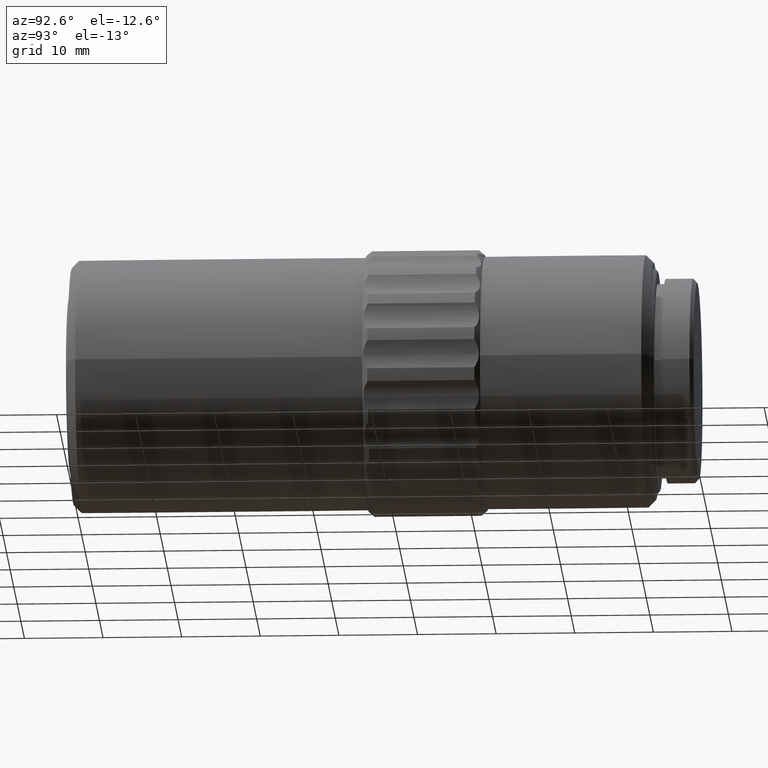
[diagram: clean part render]
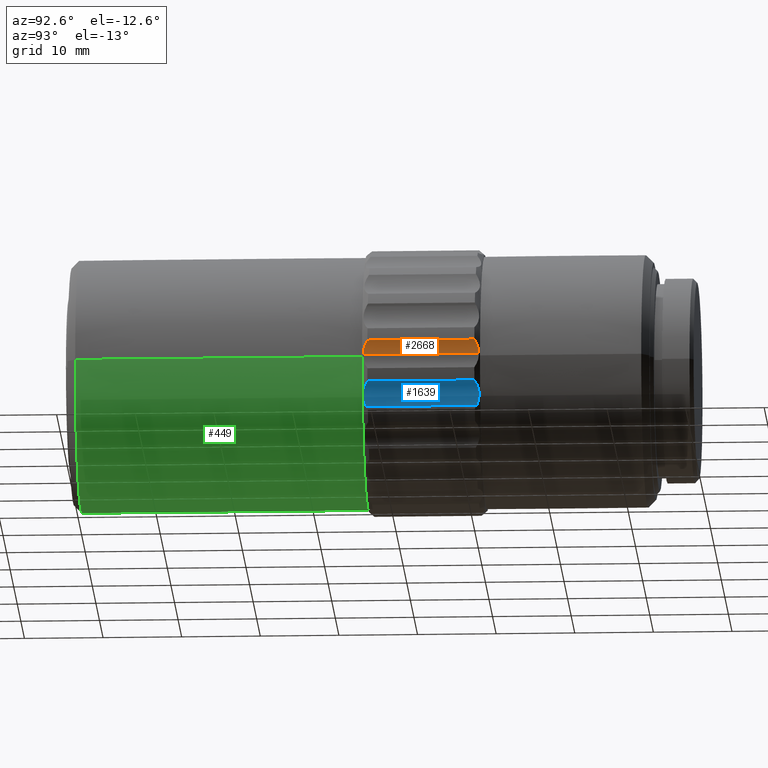
[diagram: same view with three faces highlighted in distinct colors, each labeled with its STEP entity id]
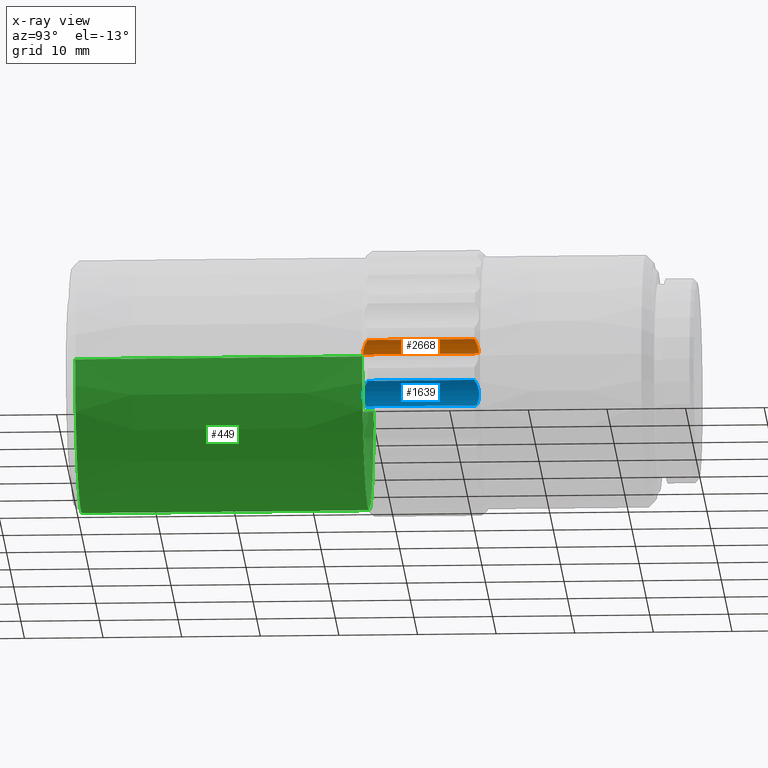
[diagram: x-ray of the same camera — body ghosted, the three highlighted faces saturated]
A machine part, auxiliary view with three faces highlighted in distinct colors.
The next image is the same camera in x-ray (body ghosted, the three faces saturated) — at least one of them is partly hidden behind the body in this view.
Their STEP definitions:

[orange] entity #2668 — the highlighted cylindrical surface (partial cylindrical patch) has radius 4.7702 mm, axis along (0, 1, 0).
#42 = ORIENTED_EDGE ( 'NONE', *, *, #192, .T. ) ;
#87 = CARTESIAN_POINT ( 'NONE',  ( 1361.088827873934861, 1001.494764065162144, 0.1917487012163752169 ) ) ;
#110 = DIRECTION ( 'NONE',  ( 9.536353041006706904E-06, 0.9999999999545291507, 3.909226458168046925E-15 ) ) ;
#192 = EDGE_CURVE ( 'NONE', #1266, #2079, #2236, .T. ) ;
#255 = CARTESIAN_POINT ( 'NONE',  ( 1361.122063543767808, 1001.432943752388610, 0.8341316487893765119 ) ) ;
#274 = CARTESIAN_POINT ( 'NONE',  ( 1361.437935237061538, 996.7971688132432746, 1.983154744599805896 ) ) ;
#294 = B_SPLINE_CURVE_WITH_KNOTS ( 'NONE', 3,
 ( #2309, #1195, #2732, #362, #2551, #1232 ),
 .UNSPECIFIED., .F., .F.,
 ( 4, 2, 4 ),
 ( 1.475248762992163295E-06, 0.0009720655540177527195, 0.001942655859272512681 ),
 .UNSPECIFIED. ) ;
#329 = CARTESIAN_POINT ( 'NONE',  ( 1361.437828095696204, 990.4829779446437215, 1.983038929509113757 ) ) ;
#362 = CARTESIAN_POINT ( 'NONE',  ( 1361.121908297512391, 986.8192080218962019, 0.8339938458747182537 ) ) ;
#511 = CARTESIAN_POINT ( 'NONE',  ( 1361.437981942076249, 999.5496446098438810, 1.983205228694574940 ) ) ;
#563 = FACE_OUTER_BOUND ( 'NONE', #1011, .T. ) ;
#637 = EDGE_CURVE ( 'NONE', #2228, #2079, #2343, .T. ) ;
#672 = CARTESIAN_POINT ( 'NONE',  ( 1361.088638397358636, 981.6258922507332727, 0.1917487012163020532 ) ) ;
#693 = ORIENTED_EDGE ( 'NONE', *, *, #637, .F. ) ;
#789 = CARTESIAN_POINT ( 'NONE',  ( 1361.438005294609866, 1000.925882508144127, 1.983230469874889712 ) ) ;
#799 = EDGE_CURVE ( 'NONE', #1326, #1266, #294, .T. ) ;
#872 = B_SPLINE_CURVE_WITH_KNOTS ( 'NONE', 3,
 ( #951, #329, #1388, #274, #1857, #511, #1829 ),
 .UNSPECIFIED., .F., .F.,
 ( 4, 3, 4 ),
 ( 6.908954039100683332E-05, 0.009540375846247206235, 0.01366908954243689460 ),
 .UNSPECIFIED. ) ;
#905 = ORIENTED_EDGE ( 'NONE', *, *, #799, .T. ) ;
#951 = CARTESIAN_POINT ( 'NONE',  ( 1361.437774525151553, 987.3258825103439449, 1.982981017399519708 ) ) ;
#1006 = CARTESIAN_POINT ( 'NONE',  ( 1361.088687333665348, 986.7574458453808575, 0.1917487012163211491 ) ) ;
#1011 = EDGE_LOOP ( 'NONE', ( #905, #42, #693, #2102 ) ) ;
#1168 = CARTESIAN_POINT ( 'NONE',  ( 1361.438005294609866, 1000.925882508144127, 1.983230469874889712 ) ) ;
#1195 = CARTESIAN_POINT ( 'NONE',  ( 1361.332168262155164, 987.1601955093375409, 1.722328331945940816 ) ) ;
#1232 = CARTESIAN_POINT ( 'NONE',  ( 1361.088687333665348, 986.7574458453808575, 0.1917487012163211491 ) ) ;
#1266 = VERTEX_POINT ( 'NONE', #1006 ) ;
#1326 = VERTEX_POINT ( 'NONE', #2169 ) ;
#1355 = CARTESIAN_POINT ( 'NONE',  ( 1361.245529310081793, 1001.230923882091588, 1.443600356246418137 ) ) ;
#1388 = CARTESIAN_POINT ( 'NONE',  ( 1361.437881666333169, 993.6400733789434980, 1.983096838575564513 ) ) ;
#1533 = VECTOR ( 'NONE', #1539, 1000.000000000000114 ) ;
#1539 = DIRECTION ( 'NONE',  ( 9.536353041006706904E-06, 0.9999999999545290397, 3.909226458168046136E-15 ) ) ;
#1577 = CARTESIAN_POINT ( 'NONE',  ( 1361.088827873934861, 1001.494764065162144, 0.1917487012163752169 ) ) ;
#1622 = CYLINDRICAL_SURFACE ( 'NONE', #2562, 4.770187923123637930 ) ;
#1829 = CARTESIAN_POINT ( 'NONE',  ( 1361.438005294609866, 1000.925882508144127, 1.983230469874889712 ) ) ;
#1857 = CARTESIAN_POINT ( 'NONE',  ( 1361.437958589560139, 998.1734067115436346, 1.983179986936237871 ) ) ;
#2079 = VERTEX_POINT ( 'NONE', #87 ) ;
#2102 = ORIENTED_EDGE ( 'NONE', *, *, #2138, .F. ) ;
#2109 = CARTESIAN_POINT ( 'NONE',  ( 1365.858826320265280, 981.6258467605372289, 0.1917487012163020532 ) ) ;
#2138 = EDGE_CURVE ( 'NONE', #1326, #2228, #872, .T. ) ;
#2169 = CARTESIAN_POINT ( 'NONE',  ( 1361.437774525151553, 987.3258825103439449, 1.982981017399519708 ) ) ;
#2228 = VERTEX_POINT ( 'NONE', #789 ) ;
#2236 = LINE ( 'NONE', #672, #1533 ) ;
#2261 = CARTESIAN_POINT ( 'NONE',  ( 1361.332380274622210, 1001.091685556863922, 1.722565947290467081 ) ) ;
#2276 = CARTESIAN_POINT ( 'NONE',  ( 1361.088827829412367, 1001.490095324133904, 0.5183063114150193718 ) ) ;
#2309 = CARTESIAN_POINT ( 'NONE',  ( 1361.437774525151553, 987.3258825103439449, 1.982981017399519708 ) ) ;
#2335 = DIRECTION ( 'NONE',  ( -0.9999999999545289286, 9.536353030028893939E-06, 0.000000000000000000 ) ) ;
#2343 = B_SPLINE_CURVE_WITH_KNOTS ( 'NONE', 3,
 ( #1168, #2261, #1355, #255, #2276, #1577 ),
 .UNSPECIFIED., .F., .F.,
 ( 4, 2, 4 ),
 ( 8.510462362979237142E-07, 0.0009716461003497434351, 0.001942441154463188813 ),
 .UNSPECIFIED. ) ;
#2551 = CARTESIAN_POINT ( 'NONE',  ( 1361.088687378155782, 986.7621112157486323, 0.5182310429920471417 ) ) ;
#2562 = AXIS2_PLACEMENT_3D ( 'NONE', #2109, #110, #2335 ) ;
#2668 = ADVANCED_FACE ( 'NONE', ( #563 ), #1622, .F. ) ;
#2732 = CARTESIAN_POINT ( 'NONE',  ( 1361.245337859686060, 987.0210629904617008, 1.443383579379569959 ) ) ;

[blue] entity #1639 — the highlighted cylindrical surface (partial cylindrical patch) has radius 4.7702 mm, axis along (0, 1, 0).
#5 = FACE_OUTER_BOUND ( 'NONE', #2446, .T. ) ;
#67 = CARTESIAN_POINT ( 'NONE',  ( 1360.516426105005166, 1001.452184501154534, -4.433252895540777061 ) ) ;
#77 = CARTESIAN_POINT ( 'NONE',  ( 1360.359758931667102, 1001.497003777319833, -4.836166959938022814 ) ) ;
#92 = CARTESIAN_POINT ( 'NONE',  ( 1360.915500859452777, 1001.202201818267099, -3.697076946008385434 ) ) ;
#161 = CARTESIAN_POINT ( 'NONE',  ( 1361.230796750657873, 1000.925884484158246, -3.291493730859734068 ) ) ;
#188 = VERTEX_POINT ( 'NONE', #703 ) ;
#241 = CARTESIAN_POINT ( 'NONE',  ( 1360.359569228805867, 986.7552170746745333, -4.836314371760460418 ) ) ;
#263 = CARTESIAN_POINT ( 'NONE',  ( 1364.881640074755069, 981.6258560793301058, -6.361459841903609025 ) ) ;
#279 = B_SPLINE_CURVE_WITH_KNOTS ( 'NONE', 3,
 ( #280, #1379, #92, #2037, #2698, #67, #1178, #77, #2711, #532, #1407, #1192, #1849, #1862, #1240, #370 ),
 .UNSPECIFIED., .F., .F.,
 ( 4, 2, 2, 2, 2, 2, 2, 4 ),
 ( 8.548990359077657974E-07, 0.0008729205216675889117, 0.001308953332983318939, 0.001744986144299049075, 0.002181018955614778560, 0.002617051766930508262, 0.003053084578246237964, 0.003489117389561967666 ),
 .UNSPECIFIED. ) ;
#280 = CARTESIAN_POINT ( 'NONE',  ( 1361.230796750657873, 1000.925884484158246, -3.291493730859734068 ) ) ;
#370 = CARTESIAN_POINT ( 'NONE',  ( 1360.111638342250899, 1001.150179000349226, -6.361459841903556622 ) ) ;
#409 = EDGE_CURVE ( 'NONE', #881, #188, #279, .T. ) ;
#426 = VERTEX_POINT ( 'NONE', #795 ) ;
#442 = CARTESIAN_POINT ( 'NONE',  ( 1361.230634478212096, 993.6400740375222540, -3.291604089074846140 ) ) ;
#454 = ORIENTED_EDGE ( 'NONE', *, *, #1316, .T. ) ;
#515 = ORIENTED_EDGE ( 'NONE', *, *, #409, .F. ) ;
#532 = CARTESIAN_POINT ( 'NONE',  ( 1360.238674101324705, 1001.479149409200772, -5.258298008863912187 ) ) ;
#603 = LINE ( 'NONE', #1949, #2701 ) ;
#615 = CARTESIAN_POINT ( 'NONE',  ( 1361.230796750657873, 1000.925884484158246, -3.291493730859734068 ) ) ;
#703 = CARTESIAN_POINT ( 'NONE',  ( 1360.111638342250899, 1001.150179000349226, -6.361459841903556622 ) ) ;
#716 = DIRECTION ( 'NONE',  ( -0.9999999999545289286, 9.536353053303092670E-06, 0.000000000000000000 ) ) ;
#795 = CARTESIAN_POINT ( 'NONE',  ( 1360.111504372713171, 987.1018801498815947, -6.361459841903545076 ) ) ;
#828 = B_SPLINE_CURVE_WITH_KNOTS ( 'NONE', 3,
 ( #904, #1339, #2247, #2027, #2216, #1815, #2691, #241, #1123, #1997, #1786, #1842, #2512, #965, #1018, #1458 ),
 .UNSPECIFIED., .F., .F.,
 ( 4, 2, 2, 2, 2, 2, 2, 4 ),
 ( 1.471397044919114264E-06, 0.0008734184347307200015, 0.001309391953573463274, 0.001745365472416206438, 0.002181338991258949169, 0.002617312510101692767, 0.003053286028944435498, 0.003489259547787179096 ),
 .UNSPECIFIED. ) ;
#881 = VERTEX_POINT ( 'NONE', #615 ) ;
#904 = CARTESIAN_POINT ( 'NONE',  ( 1361.230493843110708, 987.3258844870458688, -3.291699740351489822 ) ) ;
#932 = VERTEX_POINT ( 'NONE', #1937 ) ;
#941 = ORIENTED_EDGE ( 'NONE', *, *, #2651, .T. ) ;
#965 = CARTESIAN_POINT ( 'NONE',  ( 1360.116915459094798, 986.9856873487743769, -6.095567953888948232 ) ) ;
#1018 = CARTESIAN_POINT ( 'NONE',  ( 1360.111503788045638, 987.0405708255335639, -6.229916568731749926 ) ) ;
#1073 = CARTESIAN_POINT ( 'NONE',  ( 1361.230704794483700, 996.7971688127605603, -3.291556267819401693 ) ) ;
#1123 = CARTESIAN_POINT ( 'NONE',  ( 1360.314349882278520, 986.7540939835621430, -4.977528649041003561 ) ) ;
#1178 = CARTESIAN_POINT ( 'NONE',  ( 1360.460552188662405, 1001.473921428838594, -4.564810321800134574 ) ) ;
#1192 = CARTESIAN_POINT ( 'NONE',  ( 1360.158568651938822, 1001.400448202197595, -5.678990832937908628 ) ) ;
#1240 = CARTESIAN_POINT ( 'NONE',  ( 1360.111638927224249, 1001.211520421173304, -6.229912402317562936 ) ) ;
#1316 = EDGE_CURVE ( 'NONE', #426, #188, #603, .T. ) ;
#1339 = CARTESIAN_POINT ( 'NONE',  ( 1361.067903889741046, 987.1770372527122390, -3.485084021567157908 ) ) ;
#1349 = EDGE_CURVE ( 'NONE', #932, #881, #2513, .T. ) ;
#1379 = CARTESIAN_POINT ( 'NONE',  ( 1361.068199853969645, 1001.074826060929013, -3.484867496335022352 ) ) ;
#1407 = CARTESIAN_POINT ( 'NONE',  ( 1360.207659292650305, 1001.459314595594151, -5.398607553856887620 ) ) ;
#1458 = CARTESIAN_POINT ( 'NONE',  ( 1360.111504372713171, 987.1018801498815947, -6.361459841903545076 ) ) ;
#1532 = CARTESIAN_POINT ( 'NONE',  ( 1361.230493843110708, 987.3258844870458688, -3.291699740351489822 ) ) ;
#1623 = AXIS2_PLACEMENT_3D ( 'NONE', #263, #2428, #716 ) ;
#1639 = ADVANCED_FACE ( 'NONE', ( #5 ), #2190, .F. ) ;
#1717 = DIRECTION ( 'NONE',  ( 9.536353042214724965E-06, 0.9999999999545290397, 3.717894844393984498E-15 ) ) ;
#1750 = CARTESIAN_POINT ( 'NONE',  ( 1361.230735446703648, 998.1734073698930843, -3.291535421611011092 ) ) ;
#1786 = CARTESIAN_POINT ( 'NONE',  ( 1360.207503761573889, 986.7929084027060753, -5.398686277354046936 ) ) ;
#1815 = CARTESIAN_POINT ( 'NONE',  ( 1360.516202356796157, 986.7999796405214283, -4.433444145279089810 ) ) ;
#1842 = CARTESIAN_POINT ( 'NONE',  ( 1360.158424117635150, 986.8517450935189572, -5.679034684006555977 ) ) ;
#1849 = CARTESIAN_POINT ( 'NONE',  ( 1360.140436085832562, 1001.360980795183536, -5.820175734917208743 ) ) ;
#1862 = CARTESIAN_POINT ( 'NONE',  ( 1360.117051968546320, 1001.266432964146475, -6.095558135150638712 ) ) ;
#1937 = CARTESIAN_POINT ( 'NONE',  ( 1361.230493843110708, 987.3258844870458688, -3.291699740351489822 ) ) ;
#1949 = CARTESIAN_POINT ( 'NONE',  ( 1360.111452151848198, 981.6259015695262633, -6.361459841903609025 ) ) ;
#1997 = CARTESIAN_POINT ( 'NONE',  ( 1360.238511698260936, 986.7730810105532555, -5.258393647519045366 ) ) ;
#2027 = CARTESIAN_POINT ( 'NONE',  ( 1360.704865204824500, 986.9032817038596477, -4.053253064989045917 ) ) ;
#2037 = CARTESIAN_POINT ( 'NONE',  ( 1360.705123391927145, 1001.348786491913074, -4.053034784379041966 ) ) ;
#2190 = CYLINDRICAL_SURFACE ( 'NONE', #1623, 4.770187923123637930 ) ;
#2216 = CARTESIAN_POINT ( 'NONE',  ( 1360.638182916947244, 986.8622802230189563, -4.178029206217912517 ) ) ;
#2247 = CARTESIAN_POINT ( 'NONE',  ( 1360.915216950168769, 987.0497506750145931, -3.697299970668761038 ) ) ;
#2361 = CARTESIAN_POINT ( 'NONE',  ( 1361.230766098761933, 999.5496459270257219, -3.291514575957815048 ) ) ;
#2405 = CARTESIAN_POINT ( 'NONE',  ( 1361.230564161088068, 990.4829792622840614, -3.291651913251957495 ) ) ;
#2428 = DIRECTION ( 'NONE',  ( 9.536353042214724965E-06, 0.9999999999545291507, 3.717894844393984498E-15 ) ) ;
#2446 = EDGE_LOOP ( 'NONE', ( #941, #454, #515, #2608 ) ) ;
#2512 = CARTESIAN_POINT ( 'NONE',  ( 1360.140295448782581, 986.8911893246201998, -5.820200908900019066 ) ) ;
#2513 = B_SPLINE_CURVE_WITH_KNOTS ( 'NONE', 3,
 ( #1532, #2405, #442, #1073, #1750, #2361, #161 ),
 .UNSPECIFIED., .F., .F.,
 ( 4, 3, 4 ),
 ( 6.909151709641568747E-05, 0.009540375846247077865, 0.01366909151914234496 ),
 .UNSPECIFIED. ) ;
#2608 = ORIENTED_EDGE ( 'NONE', *, *, #1349, .F. ) ;
#2651 = EDGE_CURVE ( 'NONE', #932, #426, #828, .T. ) ;
#2691 = CARTESIAN_POINT ( 'NONE',  ( 1360.460339987263296, 986.7782665511283540, -4.564989165291438944 ) ) ;
#2698 = CARTESIAN_POINT ( 'NONE',  ( 1360.638429384752271, 1001.389824393246613, -4.177818559232601814 ) ) ;
#2701 = VECTOR ( 'NONE', #1717, 1000.000000000000114 ) ;
#2711 = CARTESIAN_POINT ( 'NONE',  ( 1360.314528811645459, 1001.498135512470299, -4.977400291317552572 ) ) ;

[green] entity #449 — the highlighted conical surface has half-angle 0.001 deg.
#26 = VERTEX_POINT ( 'NONE', #1022 ) ;
#55 = VERTEX_POINT ( 'NONE', #225 ) ;
#81 = VERTEX_POINT ( 'NONE', #1773 ) ;
#141 = DIRECTION ( 'NONE',  ( -0.9999999999545290397, 9.536353043662082349E-06, 0.000000000000000000 ) ) ;
#198 = EDGE_CURVE ( 'NONE', #81, #2082, #2280, .T. ) ;
#225 = CARTESIAN_POINT ( 'NONE',  ( 1360.782215169381743, 986.6258961285927853, -1.347616359576374817E-09 ) ) ;
#237 = CONICAL_SURFACE ( 'NONE', #1756, 16.09959947244131229, 9.536353053264661091E-06 ) ;
#299 = EDGE_CURVE ( 'NONE', #81, #55, #390, .T. ) ;
#323 = CARTESIAN_POINT ( 'NONE',  ( 1344.682615697672645, 986.6260496600572196, -1.347618331208670883E-09 ) ) ;
#390 = LINE ( 'NONE', #2178, #2401 ) ;
#449 = ADVANCED_FACE ( 'NONE', ( #2791 ), #237, .T. ) ;
#553 = CARTESIAN_POINT ( 'NONE',  ( 1328.583016225963092, 950.1262031915202897, -1.347618331208670883E-09 ) ) ;
#780 = EDGE_CURVE ( 'NONE', #2082, #26, #787, .T. ) ;
#787 = LINE ( 'NONE', #1424, #1023 ) ;
#877 = DIRECTION ( 'NONE',  ( 1.907270609716879158E-05, 0.9999999998181159366, 1.167866424204264225E-21 ) ) ;
#909 = CARTESIAN_POINT ( 'NONE',  ( 1344.682267620786206, 950.1260496633751700, -1.347618331208670883E-09 ) ) ;
#1013 = ORIENTED_EDGE ( 'NONE', *, *, #198, .T. ) ;
#1022 = CARTESIAN_POINT ( 'NONE',  ( 1328.583016225963320, 986.6262031915216539, -1.347618331208670883E-09 ) ) ;
#1023 = VECTOR ( 'NONE', #2540, 1000.000000000000000 ) ;
#1203 = DIRECTION ( 'NONE',  ( 9.536353044915926586E-06, 0.9999999999545290397, -0.000000000000000000 ) ) ;
#1345 = ORIENTED_EDGE ( 'NONE', *, *, #2414, .F. ) ;
#1424 = CARTESIAN_POINT ( 'NONE',  ( 1328.583016225963320, 986.6262031915216539, -1.347618331208670883E-09 ) ) ;
#1452 = CARTESIAN_POINT ( 'NONE',  ( 1344.682615697672645, 986.6260496600572196, -1.347618331208670883E-09 ) ) ;
#1600 = CIRCLE ( 'NONE', #1963, 16.09959947244109202 ) ;
#1756 = AXIS2_PLACEMENT_3D ( 'NONE', #1452, #1203, #141 ) ;
#1773 = CARTESIAN_POINT ( 'NONE',  ( 1360.781519015609092, 950.1258961352301640, -1.347616359619001709E-09 ) ) ;
#1902 = AXIS2_PLACEMENT_3D ( 'NONE', #909, #1972, #2444 ) ;
#1963 = AXIS2_PLACEMENT_3D ( 'NONE', #323, #2296, #2555 ) ;
#1972 = DIRECTION ( 'NONE',  ( 9.536353044915926586E-06, 0.9999999999545290397, -0.000000000000000000 ) ) ;
#2082 = VERTEX_POINT ( 'NONE', #553 ) ;
#2159 = ORIENTED_EDGE ( 'NONE', *, *, #780, .T. ) ;
#2178 = CARTESIAN_POINT ( 'NONE',  ( 1360.782215169381743, 986.6258961285927853, -1.347616359576374817E-09 ) ) ;
#2280 = CIRCLE ( 'NONE', #1902, 16.09925139555509332 ) ;
#2296 = DIRECTION ( 'NONE',  ( 9.536353044915926586E-06, 0.9999999999545290397, -0.000000000000000000 ) ) ;
#2387 = EDGE_LOOP ( 'NONE', ( #2689, #1013, #2159, #1345 ) ) ;
#2401 = VECTOR ( 'NONE', #877, 1000.000000000000114 ) ;
#2414 = EDGE_CURVE ( 'NONE', #55, #26, #1600, .T. ) ;
#2444 = DIRECTION ( 'NONE',  ( -0.9999999999545289286, 9.536353046101593141E-06, 0.000000000000000000 ) ) ;
#2540 = DIRECTION ( 'NONE',  ( -8.204191720515702224E-15, 1.000000000000000000, 0.000000000000000000 ) ) ;
#2555 = DIRECTION ( 'NONE',  ( -0.9999999999545290397, 9.536353043662212792E-06, 0.000000000000000000 ) ) ;
#2689 = ORIENTED_EDGE ( 'NONE', *, *, #299, .F. ) ;
#2791 = FACE_OUTER_BOUND ( 'NONE', #2387, .T. ) ;